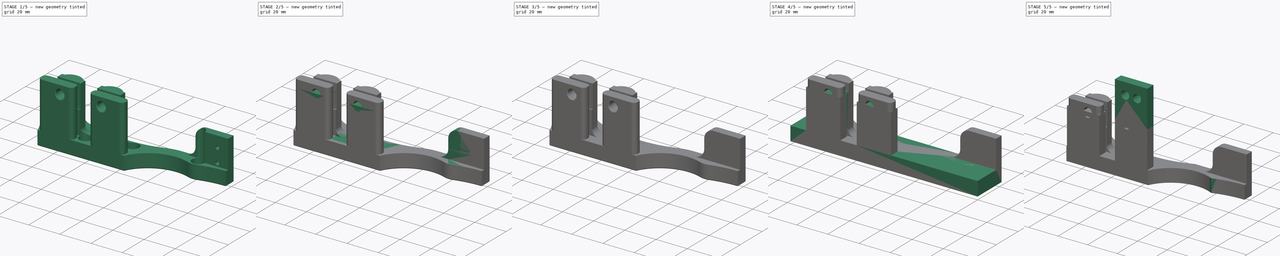
[diagram: build sequence overview — one tinted view per stage of 5, left to right]
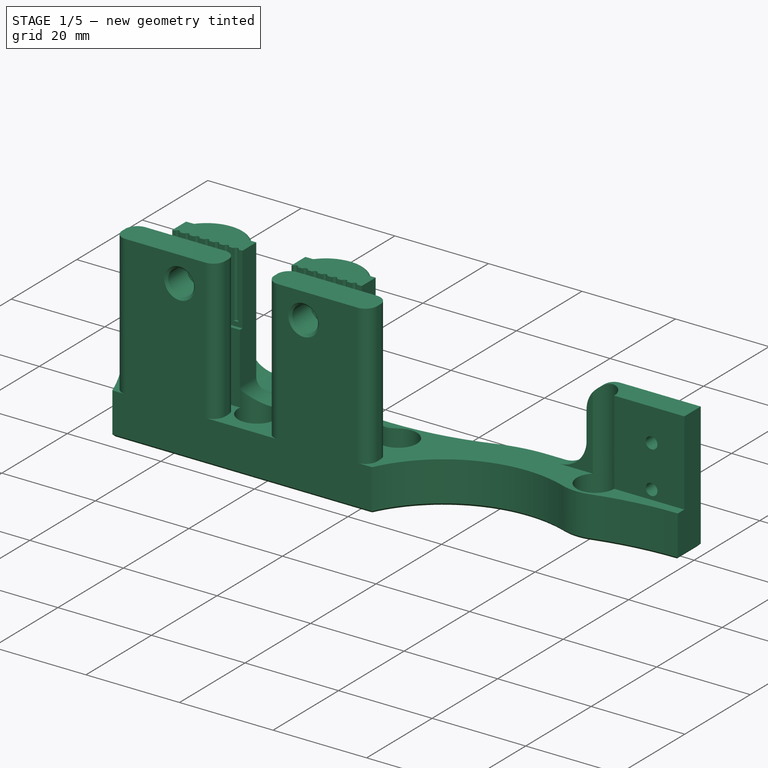
[diagram: stage 1 of 5 — iso view after this stage's code; geometry added in this stage tinted green]
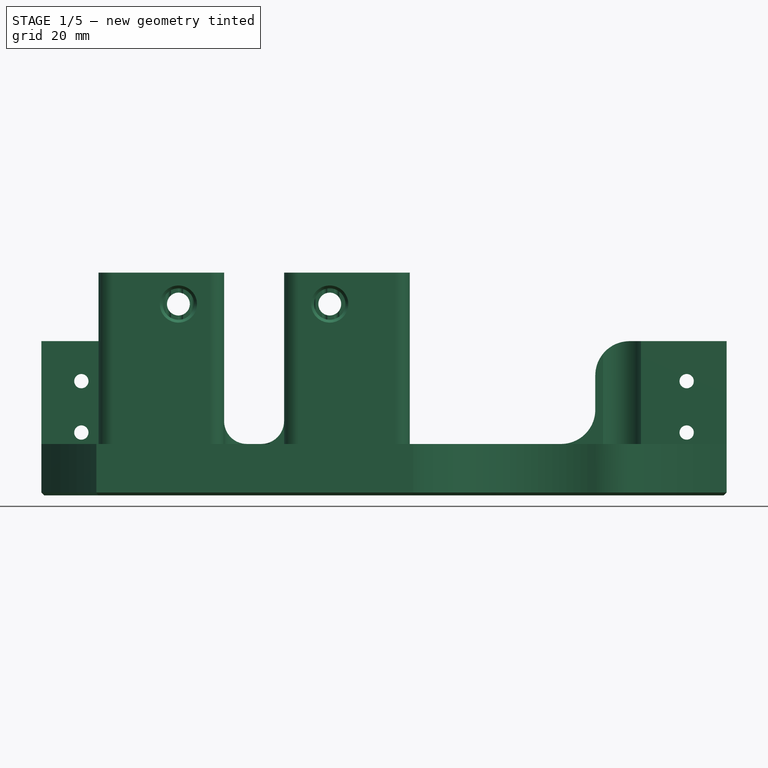
[diagram: stage 1 of 5 — front view after this stage's code; geometry added in this stage tinted green]
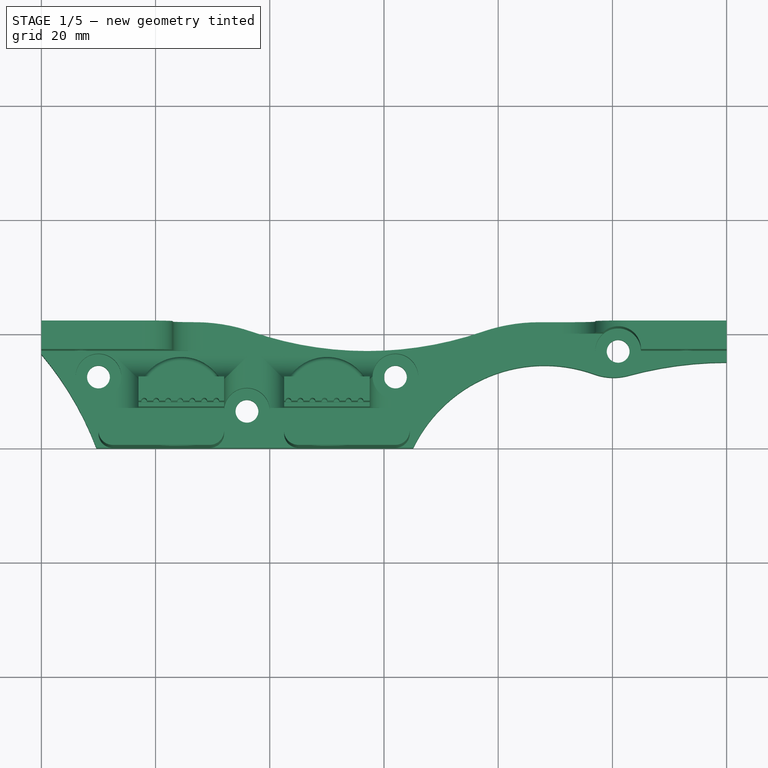
[diagram: stage 1 of 5 — top view after this stage's code; geometry added in this stage tinted green]
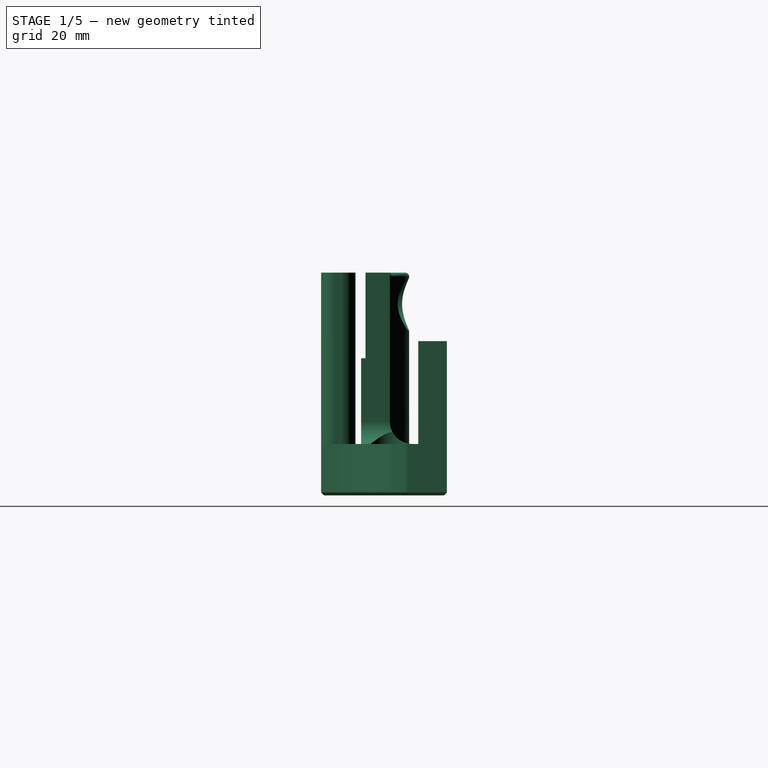
[diagram: stage 1 of 5 — right view after this stage's code; geometry added in this stage tinted green]
FCSTD DOCUMENT  (FreeCAD 0.16R5861 (Git))
Label: y_belt_mount_0.75
License: All rights reserved
LicenseURL: http://en.wikipedia.org/wiki/All_rights_reserved
objects: Sketcher::SketchObject×34, PartDesign::Pocket×21, PartDesign::Pad×12, PartDesign::Fillet×7, PartDesign::Chamfer×6, Part::Feature×3, PartDesign::LinearPattern×1
note: 117 computed .brp shape members not serialized (recipe doc carries the construction recipe); baked Part::Feature solids carry a one-line shape summary decoded from their .brp

FEATURE [Part::Feature] Pocket009009001  label="Pocket009010"
  shape: bbox 120 x 22 x 39.28 mm, 143 faces (baked)
FEATURE [Sketcher::SketchObject] Sketch028
  ExternalGeometry = -> [Pocket009009001]
  Placement = pos=(0,22,0) rot=(0,0.707107,0.707107;3.14159rad)
  Support = -> Pocket009009001 [Face14]
  sketch-geometry (4):
    g0: Circle CenterX=-113 CenterY=16 CenterZ=0 NormalX=0 NormalY=0 NormalZ=1 Radius=3
    g1: Circle CenterX=-113 CenterY=7 CenterZ=0 NormalX=0 NormalY=0 NormalZ=1 Radius=3
    g2: Circle CenterX=-7 CenterY=7 CenterZ=0 NormalX=0 NormalY=0 NormalZ=1 Radius=3
    g3: Circle CenterX=-7 CenterY=16 CenterZ=0 NormalX=0 NormalY=0 NormalZ=1 Radius=3
  constraints (8):
    c: Coincident(g0,g-3)
    c: Coincident(g1,g-4)
    c: Coincident(g2,g-6)
    c: Coincident(g3,g-5)
    c: Equal(g3,g2)
    c: Equal(g2,g1)
    c: Equal(g1,g0)
    c: Radius(g0) = 3
FEATURE [PartDesign::Pad] Pad010
  Length = 5
  Length2 = 100
  Reversed = true
  Sketch = -> Sketch028
  Type = 0
FEATURE [Sketcher::SketchObject] Sketch029
  ExternalGeometry = -> [Pad010]
  Placement = pos=(0,22,0) rot=(0,0.707107,0.707107;3.14159rad)
  Support = -> Pad010 [Face40]
  sketch-geometry (8):
    g0: LineSegment [constr] StartX=-113 StartY=11 StartZ=0 EndX=-7 EndY=11 EndZ=0
    g1: LineSegment [constr] StartX=-7 StartY=11 StartZ=0 EndX=-7 EndY=20 EndZ=0
    g2: LineSegment [constr] StartX=-7 StartY=20 StartZ=0 EndX=-113 EndY=20 EndZ=0
    g3: LineSegment [constr] StartX=-113 StartY=20 StartZ=0 EndX=-113 EndY=11 EndZ=0
    g4: Circle CenterX=-113 CenterY=20 CenterZ=0 NormalX=0 NormalY=0 NormalZ=1 Radius=1.25
    g5: Circle CenterX=-113 CenterY=11 CenterZ=0 NormalX=0 NormalY=0 NormalZ=1 Radius=1.25
    g6: Circle CenterX=-7 CenterY=11 CenterZ=0 NormalX=0 NormalY=0 NormalZ=1 Radius=1.25
    g7: Circle CenterX=-7 CenterY=20 CenterZ=0 NormalX=0 NormalY=0 NormalZ=1 Radius=1.25
  constraints (20):
    c: Coincident(g0,g1)
    c: Coincident(g1,g2)
    c: Coincident(g2,g3)
    c: Coincident(g3,g0)
    c: Horizontal(g0)
    c: Horizontal(g2)
    c: Vertical(g1)
    c: Vertical(g3)
    c: PointOnObject(g-3,g3)
    c: PointOnObject(g-4,g1)
    c: DistanceY(g1) = 9
    c: DistanceY(g2,g-3) = -4
    c: Coincident(g4,g2)
    c: Coincident(g5,g0)
    c: Coincident(g6,g0)
    c: Coincident(g7,g1)
    c: Equal(g5,g4)
    c: Equal(g4,g7)
    c: Equal(g7,g6)
    c: Radius(g7) = 1.25
FEATURE [PartDesign::Pocket] Pocket009009002
  Length = 5
  Sketch = -> Sketch029
  Type = 0
FEATURE [PartDesign::Chamfer] Chamfer004
  Base = -> Pocket009009002 [Edge177,Edge181,Edge286,Edge290]
  Size = 0.4
FEATURE [Part::Feature] Chamfer004001  label="Chamfer005"
  shape: bbox 120 x 22 x 39.28 mm, 155 faces (baked)
FEATURE [PartDesign::Fillet] Fillet005
  Base = -> Chamfer004001 [Edge266,Edge274,Edge265,Edge257]
  Radius = 2
FEATURE [PartDesign::Chamfer] Chamfer004002
  Base = -> Fillet005 [Edge66,Edge204]
  Size = 0.7
FEATURE [Sketcher::SketchObject] Sketch030
  ExternalGeometry = -> [Chamfer004002]
  Placement = pos=(0,0,39) rot=(0,0,1;0rad)
  Support = -> Chamfer004002 [Face141]
  sketch-geometry (4):
    g0: ArcOfCircle CenterX=24.5 CenterY=7.5 CenterZ=0 NormalX=0 NormalY=0 NormalZ=1 Radius=7.90569 StartAngle=0.321751 EndAngle=2.81984
    g1: ArcOfCircle CenterX=50 CenterY=7.5 CenterZ=0 NormalX=0 NormalY=0 NormalZ=1 Radius=7.90569 StartAngle=0.321751 EndAngle=2.81984
    g2: LineSegment StartX=17 StartY=10 StartZ=0 EndX=32 EndY=10 EndZ=0
    g3: LineSegment StartX=42.5 StartY=10 StartZ=0 EndX=57.5 EndY=10 EndZ=0
  constraints (10):
    c: Coincident(g0,g-4)
    c: Coincident(g0,g-3)
    c: Coincident(g1,g-5)
    c: Coincident(g1,g-6)
    c: DistanceY(g1,g-5) = 2.5
    c: DistanceY(g0,g-3) = 2.5
    c: Coincident(g2,g0)
    c: Coincident(g2,g0)
    c: Coincident(g3,g1)
    c: Coincident(g3,g1)
FEATURE [PartDesign::Pad] Pad011
  Length = 35
  Length2 = 100
  Reversed = true
  Sketch = -> Sketch030
  Type = 0
FEATURE [Sketcher::SketchObject] Sketch031
  ExternalGeometry = -> [Pad011]
  Placement = pos=(0,0,0) rot=(1,0,0;1.5708rad)
  Support = -> Pad011 [Face17]
  sketch-geometry (2):
    g0: Circle CenterX=24 CenterY=33.5 CenterZ=0 NormalX=0 NormalY=0 NormalZ=1 Radius=2
    g1: Circle CenterX=50.5 CenterY=33.5 CenterZ=0 NormalX=0 NormalY=0 NormalZ=1 Radius=2
  constraints (4):
    c: Coincident(g0,g-3)
    c: PointOnObject(g-3,g0)
    c: Coincident(g1,g-4)
    c: PointOnObject(g-4,g1)
FEATURE [PartDesign::Pocket] Pocket009009003
  Length = 5
  Sketch = -> Sketch031
  Type = 1
FEATURE [Sketcher::SketchObject] Sketch032
  ExternalGeometry = -> [Pocket009009003]
  Placement = pos=(0,22,0) rot=(0,0.707107,0.707107;3.14159rad)
  Support = -> Pocket009009003 [Face37]
  sketch-geometry (2):
    g0: Circle CenterX=-50.5 CenterY=33.5 CenterZ=0 NormalX=0 NormalY=0 NormalZ=1 Radius=4.75
    g1: Circle CenterX=-24 CenterY=33.5 CenterZ=0 NormalX=0 NormalY=0 NormalZ=1 Radius=4.75
  constraints (4):
    c: Coincident(g0,g-4)
    c: Coincident(g1,g-5)
    c: Equal(g0,g1)
    c: Radius(g0) = 4.75
FEATURE [PartDesign::Pocket] Pocket009009004
  Length = 9
  Sketch = -> Sketch032
  Type = 0
FEATURE [PartDesign::Fillet] Fillet006
  Base = -> Pocket009009004 [Edge283,Edge412]
  Radius = 0.7
FEATURE [Sketcher::SketchObject] Sketch033
  ExternalGeometry = -> [Fillet006]
  Placement = pos=(0,22,0) rot=(0,0.707107,0.707107;3.14159rad)
  Support = -> Fillet006 [Face69]
  sketch-geometry (4):
    g0: Circle CenterX=-113 CenterY=20 CenterZ=0 NormalX=0 NormalY=0 NormalZ=1 Radius=1.5
    g1: Circle CenterX=-113 CenterY=11 CenterZ=0 NormalX=0 NormalY=0 NormalZ=1 Radius=1.5
    g2: Circle CenterX=-7 CenterY=20 CenterZ=0 NormalX=0 NormalY=0 NormalZ=1 Radius=1.5
    g3: Circle CenterX=-7 CenterY=11 CenterZ=0 NormalX=0 NormalY=0 NormalZ=1 Radius=1.5
  constraints (8):
    c: Coincident(g0,g-3)
    c: Coincident(g1,g-4)
    c: Coincident(g2,g-7)
    c: Coincident(g3,g-6)
    c: Equal(g0,g1)
    c: Equal(g1,g2)
    c: Equal(g2,g3)
    c: Radius(g2) = 1.5
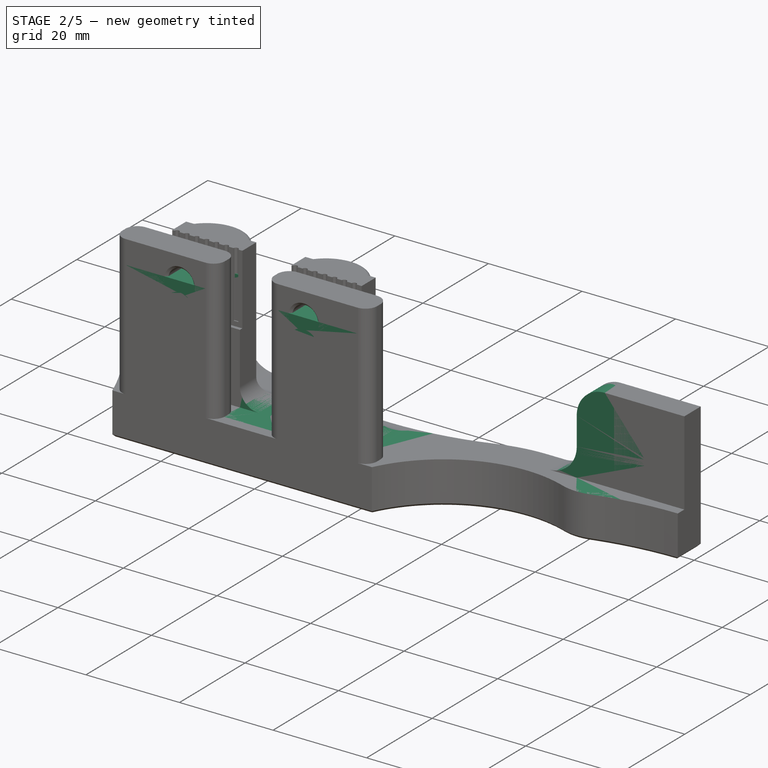
[diagram: stage 2 of 5 — iso view after this stage's code; geometry added in this stage tinted green]
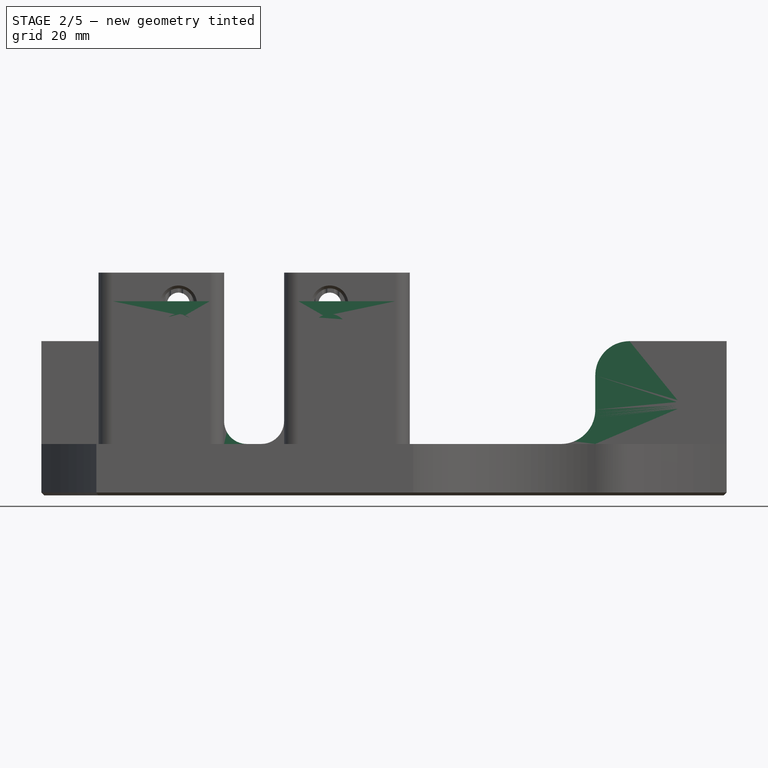
[diagram: stage 2 of 5 — front view after this stage's code; geometry added in this stage tinted green]
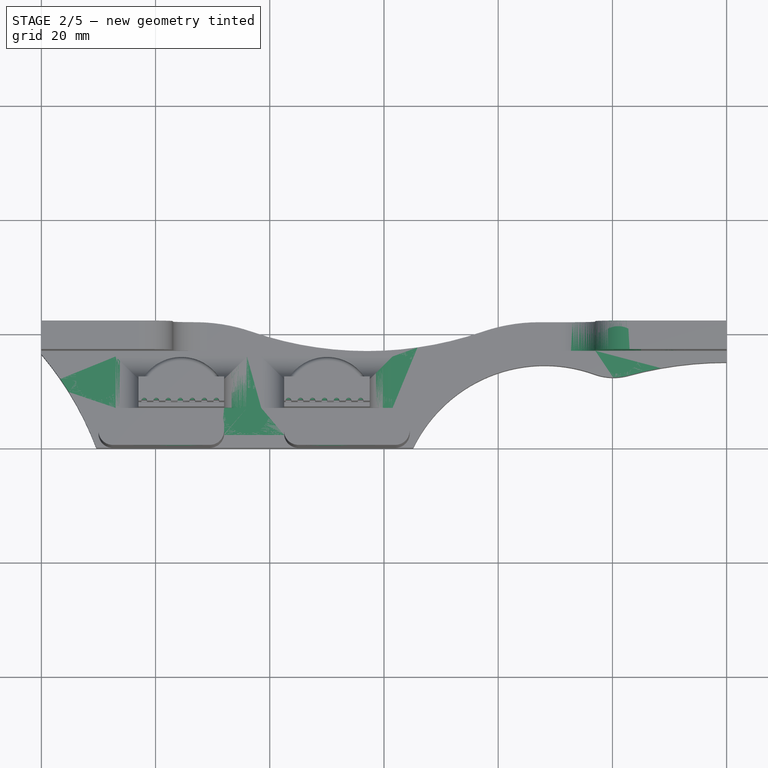
[diagram: stage 2 of 5 — top view after this stage's code; geometry added in this stage tinted green]
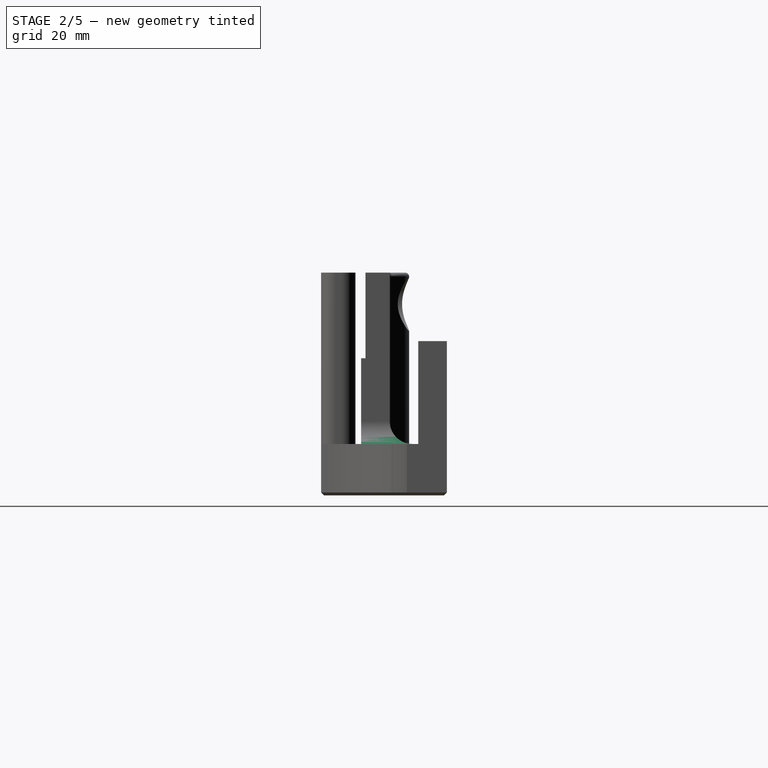
[diagram: stage 2 of 5 — right view after this stage's code; geometry added in this stage tinted green]
FEATURE [Part::Feature] Pocket009001  label="Pocket010"
  shape: bbox 120 x 22 x 53 mm, 69 faces (baked)
FEATURE [PartDesign::Fillet] Fillet002
  Base = -> Pocket009001 [Edge54,Edge53]
  Radius = 30
FEATURE [PartDesign::Fillet] Fillet003
  Base = -> Fillet002 [Edge35]
  Radius = 10
FEATURE [PartDesign::Fillet] Fillet004
  Base = -> Fillet003 [Edge40,Edge120,Edge38,Edge46,Edge124,Edge42,Edge123,Edge116]
  Radius = 2.5
FEATURE [Sketcher::SketchObject] Sketch013
  Placement = pos=(0,0,53) rot=(0,0,1;0rad)
  Support = -> Fillet004 [Face11]
  sketch-geometry (4):
    g0: LineSegment StartX=0 StartY=0 StartZ=0 EndX=130 EndY=0 EndZ=0
    g1: LineSegment StartX=130 StartY=0 StartZ=0 EndX=130 EndY=25 EndZ=0
    g2: LineSegment StartX=130 StartY=25 StartZ=0 EndX=0 EndY=25 EndZ=0
    g3: LineSegment StartX=0 StartY=25 StartZ=0 EndX=0 EndY=0 EndZ=0
  constraints (11):
    c: Coincident(g0,g1)
    c: Coincident(g1,g2)
    c: Coincident(g2,g3)
    c: Coincident(g3,g0)
    c: Horizontal(g0)
    c: Horizontal(g2)
    c: Vertical(g1)
    c: Vertical(g3)
    c: Coincident(g0,g-1)
    c: DistanceX(g2) = -130
    c: DistanceY(g3) = -25
FEATURE [PartDesign::Pocket] Pocket009002
  Length = 19
  Sketch = -> Sketch013
  Type = 0
FEATURE [PartDesign::Chamfer] Chamfer
  Base = -> Pocket009002 [Edge65,Edge66,Edge67,Edge68,Edge69,Edge5,Edge70,Edge63,Edge71,Edge72,Edge73,Edge74,Edge75,Edge76,Edge77,Edge78]
  Size = 0.5
FEATURE [PartDesign::Chamfer] Chamfer001
  Base = -> Chamfer [Edge183,Edge182,Edge139,Edge138,Edge17,Edge18]
  Size = 0.5
FEATURE [Sketcher::SketchObject] Sketch014
  ExternalGeometry = -> [Chamfer001]
  Placement = pos=(0,0,0) rot=(1,0,0;3.14159rad)
  Support = -> Chamfer001 [Face17]
  sketch-geometry (3):
    g0: Circle CenterX=37 CenterY=-6 CenterZ=0 NormalX=0 NormalY=0 NormalZ=1 Radius=3.25
    g1: Circle CenterX=12 CenterY=-12.5 CenterZ=0 NormalX=0 NormalY=0 NormalZ=1 Radius=3.25
    g2: Circle CenterX=100 CenterY=-17 CenterZ=0 NormalX=0 NormalY=0 NormalZ=1 Radius=3.25
  constraints (6):
    c: Coincident(g0,g-5)
    c: Coincident(g1,g-3)
    c: Coincident(g2,g-6)
    c: Equal(g1,g0)
    c: Equal(g0,g2)
    c: Equal(g2,g-3)
FEATURE [PartDesign::Pad] Pad003
  Length = 8
  Length2 = 100
  Reversed = true
  Sketch = -> Sketch014
  Type = 0
FEATURE [Sketcher::SketchObject] Sketch015
  ExternalGeometry = -> [Pad003]
  Placement = pos=(0,0,0) rot=(1,0,0;3.14159rad)
  Support = -> Pad003 [Face17]
  sketch-geometry (4):
    g0: Circle CenterX=36 CenterY=-6.5 CenterZ=0 NormalX=0 NormalY=0 NormalZ=1 Radius=2.75
    g1: Circle CenterX=10 CenterY=-12.5 CenterZ=0 NormalX=0 NormalY=0 NormalZ=1 Radius=2.75
    g2: Circle CenterX=101 CenterY=-17 CenterZ=0 NormalX=0 NormalY=0 NormalZ=1 Radius=2.75
    g3: LineSegment [constr] StartX=62 StartY=-12.5 StartZ=0 EndX=10 EndY=-12.5 EndZ=0
  constraints (11):
    c: DistanceX(g0,g-3) = 26
    c: DistanceY(g0,g-3) = -6
    c: Coincident(g3,g-3)
    c: Coincident(g3,g1)
    c: Horizontal(g3)
    c: DistanceX(g3) = -52
    c: DistanceY(g2,g3) = 4.5
    c: DistanceX(g3,g2) = 39
    c: Equal(g1,g0)
    c: Equal(g0,g-4)
    c: Equal(g-4,g2)
FEATURE [PartDesign::Pocket] Pocket009003
  Length = 8
  Sketch = -> Sketch015
  Type = 0
FEATURE [PartDesign::Chamfer] Chamfer002
  Base = -> Pocket009003 [Edge209,Edge202,Edge206]
  Size = 0.5
FEATURE [Sketcher::SketchObject] Sketch016
  ExternalGeometry = -> [Chamfer002]
  Placement = pos=(0,0,0) rot=(1,0,0;1.5708rad)
  Support = -> Chamfer002 [Face26]
  sketch-geometry (2):
    g0: Circle CenterX=24 CenterY=28.5 CenterZ=0 NormalX=0 NormalY=0 NormalZ=1 Radius=3.25
    g1: Circle CenterX=50.5 CenterY=28.5 CenterZ=0 NormalX=0 NormalY=0 NormalZ=1 Radius=3.25
  constraints (4):
    c: Coincident(g0,g-3)
    c: Coincident(g1,g-4)
    c: Equal(g1,g-4)
    c: Equal(g-4,g0)
FEATURE [PartDesign::Pad] Pad004
  Length = 6
  Length2 = 100
  Reversed = true
  Sketch = -> Sketch016
  Type = 0
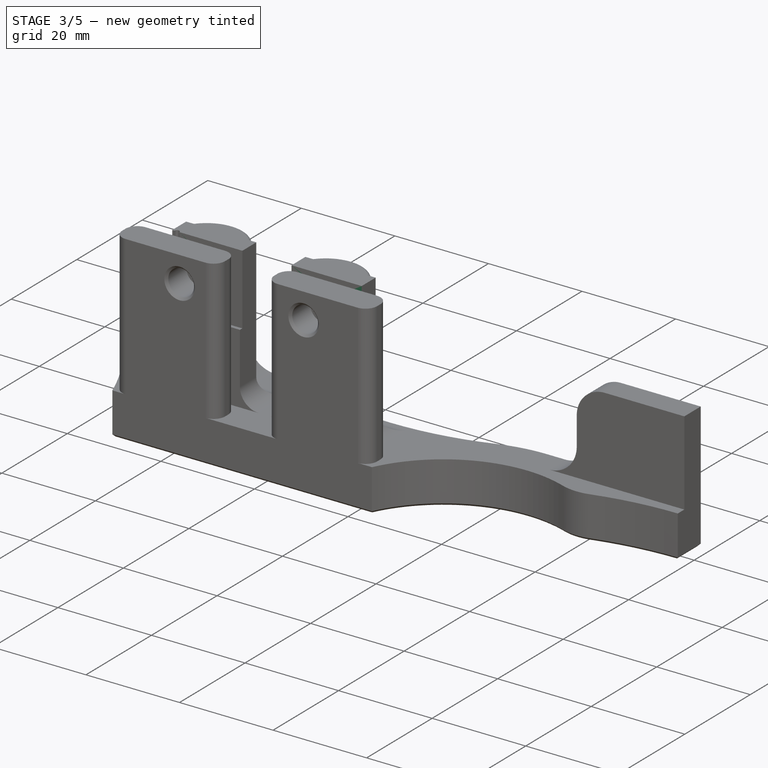
[diagram: stage 3 of 5 — iso view after this stage's code; geometry added in this stage tinted green]
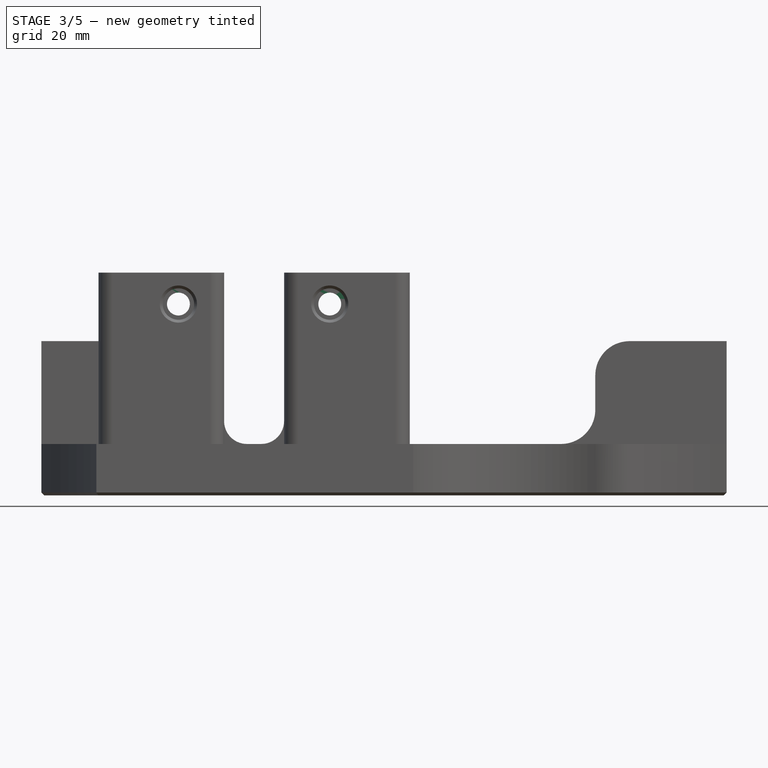
[diagram: stage 3 of 5 — front view after this stage's code; geometry added in this stage tinted green]
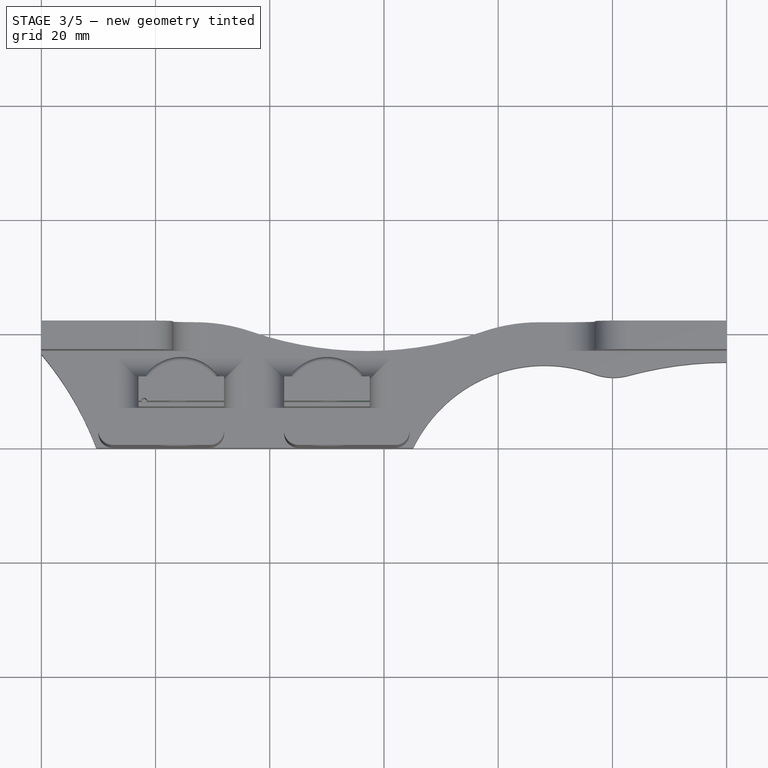
[diagram: stage 3 of 5 — top view after this stage's code; geometry added in this stage tinted green]
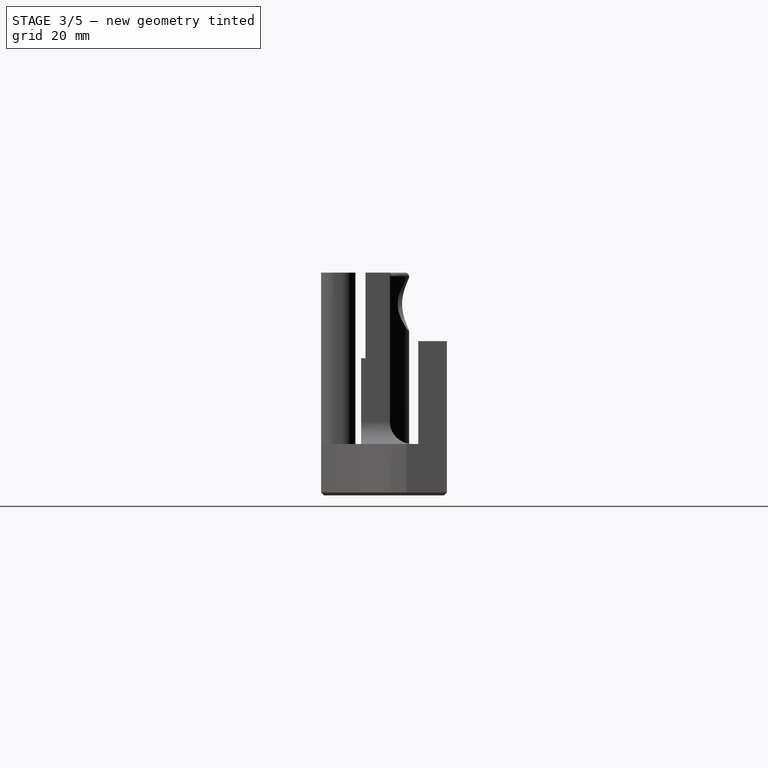
[diagram: stage 3 of 5 — right view after this stage's code; geometry added in this stage tinted green]
FEATURE [Sketcher::SketchObject] Sketch017
  ExternalGeometry = -> [Pad004]
  Placement = pos=(0,12,0) rot=(0,0.707107,0.707107;3.14159rad)
  Support = -> Pad004 [Face101]
  sketch-geometry (2):
    g0: Circle CenterX=-50.5 CenterY=28.5 CenterZ=0 NormalX=0 NormalY=0 NormalZ=1 Radius=2
    g1: Circle CenterX=-24 CenterY=28.5 CenterZ=0 NormalX=0 NormalY=0 NormalZ=1 Radius=2
  constraints (4):
    c: Coincident(g0,g-3)
    c: Coincident(g1,g-4)
    c: Equal(g-3,g0)
    c: Equal(g0,g1)
FEATURE [PartDesign::Pad] Pad005
  Length = 4
  Length2 = 100
  Reversed = true
  Sketch = -> Sketch017
  Type = 0
FEATURE [Sketcher::SketchObject] Sketch018
  ExternalGeometry = -> [Pad005]
  Placement = pos=(0,0,34) rot=(0,0,1;0rad)
  Support = -> Pad005 [Face46]
  sketch-geometry (16):
    g0: ArcOfCircle CenterX=12.5 CenterY=3.5 CenterZ=0 NormalX=0 NormalY=0 NormalZ=1 Radius=2.5 StartAngle=1.5708 EndAngle=3.14159
    g1: ArcOfCircle CenterX=12.5 CenterY=2.5 CenterZ=0 NormalX=0 NormalY=0 NormalZ=1 Radius=2.5 StartAngle=3.14159 EndAngle=4.71239
    g2: ArcOfCircle CenterX=29.5 CenterY=2.5 CenterZ=0 NormalX=0 NormalY=0 NormalZ=1 Radius=2.5 StartAngle=4.71239 EndAngle=6.28319
    g3: ArcOfCircle CenterX=29.5 CenterY=3.5 CenterZ=0 NormalX=0 NormalY=0 NormalZ=1 Radius=2.5 StartAngle=0 EndAngle=1.5708
    g4: LineSegment StartX=12.5 StartY=6 StartZ=0 EndX=29.5 EndY=6 EndZ=0
    g5: LineSegment StartX=32 StartY=3.5 StartZ=0 EndX=32 EndY=2.5 EndZ=0
    g6: LineSegment StartX=29.5 StartY=0 StartZ=0 EndX=12.5 EndY=0 EndZ=0
    g7: LineSegment StartX=10 StartY=2.5 StartZ=0 EndX=10 EndY=3.5 EndZ=0
    g8: ArcOfCircle CenterX=45 CenterY=3.5 CenterZ=0 NormalX=0 NormalY=0 NormalZ=1 Radius=2.5 StartAngle=1.5708 EndAngle=3.14159
    g9: ArcOfCircle CenterX=45 CenterY=2.5 CenterZ=0 NormalX=0 NormalY=0 NormalZ=1 Radius=2.5 StartAngle=3.14159 EndAngle=4.71239
    g10: ArcOfCircle CenterX=62 CenterY=3.5 CenterZ=0 NormalX=0 NormalY=0 NormalZ=1 Radius=2.5 StartAngle=0 EndAngle=1.5708
    g11: ArcOfCircle CenterX=62 CenterY=2.5 CenterZ=0 NormalX=0 NormalY=0 NormalZ=1 Radius=2.5 StartAngle=4.71239 EndAngle=6.28319
    g12: LineSegment StartX=45 StartY=0 StartZ=0 EndX=62 EndY=0 EndZ=0
    g13: LineSegment StartX=64.5 StartY=2.5 StartZ=0 EndX=64.5 EndY=3.5 EndZ=0
    g14: LineSegment StartX=62 StartY=6 StartZ=0 EndX=45 EndY=6 EndZ=0
    g15: LineSegment StartX=42.5 StartY=3.5 StartZ=0 EndX=42.5 EndY=2.5 EndZ=0
  constraints (46):
    c: Coincident(g0,g-3)
    c: Coincident(g0,g-3)
    c: Coincident(g0,g-3)
    c: Coincident(g1,g-9)
    c: Coincident(g1,g-9)
    c: Coincident(g1,g-9)
    c: Coincident(g2,g-4)
    c: Coincident(g2,g-4)
    c: Coincident(g2,g-4)
    c: Coincident(g3,g-5)
    c: Coincident(g3,g-5)
    c: Coincident(g3,g-5)
    c: Coincident(g4,g0)
    c: Coincident(g4,g3)
    c: Horizontal(g4)
    c: Coincident(g5,g3)
    c: Coincident(g5,g2)
    c: Coincident(g6,g2)
    c: Coincident(g6,g1)
    c: Horizontal(g6)
    c: Coincident(g7,g1)
    c: Coincident(g7,g0)
    c: Vertical(g7)
    c: Coincident(g8,g-6)
    c: Coincident(g8,g-6)
    c: Coincident(g8,g-6)
    c: Coincident(g9,g-7)
    c: Coincident(g9,g-7)
    c: Coincident(g9,g-7)
    c: Coincident(g10,g-8)
    c: Coincident(g10,g-8)
    c: Coincident(g10,g-8)
    c: Coincident(g11,g-10)
    c: Coincident(g11,g-10)
    c: Coincident(g11,g-10)
    c: Coincident(g12,g9)
    c: Coincident(g12,g11)
    c: Horizontal(g12)
    c: Coincident(g13,g11)
    c: Coincident(g13,g10)
    c: Coincident(g14,g10)
    c: Coincident(g14,g8)
    c: Horizontal(g14)
    c: Coincident(g15,g8)
    c: Coincident(g15,g9)
    c: Vertical(g15)
FEATURE [PartDesign::Pad] Pad006
  Length = 5
  Length2 = 100
  Sketch = -> Sketch018
  Type = 0
FEATURE [Sketcher::SketchObject] Sketch019
  ExternalGeometry = -> [Pad006]
  Placement = pos=(0,0,19) rot=(0,0,1;0rad)
  Support = -> Pad006 [Face115]
  sketch-geometry (8):
    g0: LineSegment StartX=17 StartY=7 StartZ=0 EndX=32 EndY=7 EndZ=0
    g1: LineSegment StartX=32 StartY=7 StartZ=0 EndX=32 EndY=8 EndZ=0
    g2: LineSegment StartX=32 StartY=8 StartZ=0 EndX=17 EndY=8 EndZ=0
    g3: LineSegment StartX=17 StartY=8 StartZ=0 EndX=17 EndY=7 EndZ=0
    g4: LineSegment StartX=42.5 StartY=7 StartZ=0 EndX=57.5 EndY=7 EndZ=0
    g5: LineSegment StartX=57.5 StartY=7 StartZ=0 EndX=57.5 EndY=8 EndZ=0
    g6: LineSegment StartX=57.5 StartY=8 StartZ=0 EndX=42.5 EndY=8 EndZ=0
    g7: LineSegment StartX=42.5 StartY=8 StartZ=0 EndX=42.5 EndY=7 EndZ=0
  constraints (20):
    c: Coincident(g0,g1)
    c: Coincident(g1,g2)
    c: Coincident(g2,g3)
    c: Coincident(g3,g0)
    c: Horizontal(g0)
    c: Horizontal(g2)
    c: Vertical(g1)
    c: Vertical(g3)
    c: Coincident(g0,g-4)
    c: Coincident(g1,g-3)
    c: Coincident(g4,g5)
    c: Coincident(g5,g6)
    c: Coincident(g6,g7)
    c: Coincident(g7,g4)
    c: Horizontal(g4)
    c: Horizontal(g6)
    c: Vertical(g5)
    c: Vertical(g7)
    c: Coincident(g4,g-5)
    c: Coincident(g5,g-6)
FEATURE [PartDesign::Pad] Pad007
  Length = 15
  Length2 = 100
  Sketch = -> Sketch019
  Type = 0
FEATURE [Sketcher::SketchObject] Sketch020
  ExternalGeometry = -> [Pad007]
  Placement = pos=(0,0,34) rot=(0,0,1;0rad)
  Support = -> Pad007 [Face127]
  sketch-geometry (8):
    g0: LineSegment StartX=17 StartY=7 StartZ=0 EndX=32 EndY=7 EndZ=0
    g1: LineSegment StartX=32 StartY=7 StartZ=0 EndX=32 EndY=12 EndZ=0
    g2: LineSegment StartX=32 StartY=12 StartZ=0 EndX=17 EndY=12 EndZ=0
    g3: LineSegment StartX=17 StartY=12 StartZ=0 EndX=17 EndY=7 EndZ=0
    g4: LineSegment StartX=42.5 StartY=7 StartZ=0 EndX=57.5 EndY=7 EndZ=0
    g5: LineSegment StartX=57.5 StartY=7 StartZ=0 EndX=57.5 EndY=12 EndZ=0
    g6: LineSegment StartX=57.5 StartY=12 StartZ=0 EndX=42.5 EndY=12 EndZ=0
    g7: LineSegment StartX=42.5 StartY=12 StartZ=0 EndX=42.5 EndY=7 EndZ=0
  constraints (20):
    c: Coincident(g0,g1)
    c: Coincident(g1,g2)
    c: Coincident(g2,g3)
    c: Coincident(g3,g0)
    c: Horizontal(g0)
    c: Horizontal(g2)
    c: Vertical(g1)
    c: Vertical(g3)
    c: Coincident(g0,g-3)
    c: Coincident(g1,g-6)
    c: Coincident(g4,g5)
    c: Coincident(g5,g6)
    c: Coincident(g6,g7)
    c: Coincident(g7,g4)
    c: Horizontal(g4)
    c: Horizontal(g6)
    c: Vertical(g5)
    c: Vertical(g7)
    c: Coincident(g4,g-5)
    c: Coincident(g5,g-4)
FEATURE [PartDesign::Pad] Pad008
  Length = 5
  Length2 = 100
  Sketch = -> Sketch020
  Type = 0
FEATURE [Sketcher::SketchObject] Sketch021
  ExternalGeometry = -> [Pad008]
  Placement = pos=(0,12,0) rot=(0,0.707107,0.707107;3.14159rad)
  Support = -> Pad008 [Face113]
  sketch-geometry (6):
    g0: LineSegment [constr] StartX=-50.5 StartY=28.5 StartZ=0 EndX=-24 EndY=28.5 EndZ=0
    g1: LineSegment [constr] StartX=-24 StartY=28.5 StartZ=0 EndX=-24 EndY=33.5 EndZ=0
    g2: LineSegment [constr] StartX=-24 StartY=33.5 StartZ=0 EndX=-50.5 EndY=33.5 EndZ=0
    g3: LineSegment [constr] StartX=-50.5 StartY=33.5 StartZ=0 EndX=-50.5 EndY=28.5 EndZ=0
    g4: Circle CenterX=-50.5 CenterY=33.5 CenterZ=0 NormalX=0 NormalY=0 NormalZ=1 Radius=2
    g5: Circle CenterX=-24 CenterY=33.5 CenterZ=0 NormalX=0 NormalY=0 NormalZ=1 Radius=2
  constraints (15):
    c: Coincident(g0,g1)
    c: Coincident(g1,g2)
    c: Coincident(g2,g3)
    c: Coincident(g3,g0)
    c: Horizontal(g0)
    c: Horizontal(g2)
    c: Vertical(g1)
    c: Vertical(g3)
    c: Coincident(g0,g-3)
    c: Coincident(g-4,g0)
    c: DistanceY(g3) = -5
    c: Coincident(g4,g2)
    c: Coincident(g5,g1)
    c: Equal(g-4,g5)
    c: Equal(g5,g4)
FEATURE [PartDesign::Pocket] Pocket009004
  Length = 5
  Sketch = -> Sketch021
  Type = 1
FEATURE [Sketcher::SketchObject] Sketch022
  ExternalGeometry = -> [Pocket009004]
  Placement = pos=(0,0,0) rot=(1,0,0;1.5708rad)
  Support = -> Pocket009004 [Face46]
  sketch-geometry (2):
    g0: Circle CenterX=24 CenterY=33.5 CenterZ=0 NormalX=0 NormalY=0 NormalZ=1 Radius=2.75
    g1: Circle CenterX=50.5 CenterY=33.5 CenterZ=0 NormalX=0 NormalY=0 NormalZ=1 Radius=2.75
  constraints (4):
    c: Coincident(g0,g-3)
    c: Coincident(g1,g-4)
    c: Equal(g0,g1)
    c: Radius(g1) = 2.75
FEATURE [PartDesign::Pocket] Pocket009005
  Length = 6
  Sketch = -> Sketch022
  Type = 0
FEATURE [PartDesign::Chamfer] Chamfer003
  Base = -> Pocket009005 [Edge197,Edge180]
  Size = 0.5
FEATURE [Sketcher::SketchObject] Sketch023
  ExternalGeometry = -> [Chamfer003]
  Placement = pos=(17,0,0) rot=(0.57735,-0.57735,-0.57735;2.0944rad)
  Support = -> Chamfer003 [Face131]
  sketch-geometry (4):
    g0: LineSegment StartX=-7 StartY=39 StartZ=0 EndX=-7.75 EndY=39 EndZ=0
    g1: LineSegment StartX=-7.75 StartY=39 StartZ=0 EndX=-7.75 EndY=24 EndZ=0
    g2: LineSegment StartX=-7.75 StartY=24 StartZ=0 EndX=-7 EndY=24 EndZ=0
    g3: LineSegment StartX=-7 StartY=24 StartZ=0 EndX=-7 EndY=39 EndZ=0
  constraints (11):
    c: Coincident(g0,g1)
    c: Coincident(g1,g2)
    c: Coincident(g2,g3)
    c: Coincident(g3,g0)
    c: Horizontal(g0)
    c: Horizontal(g2)
    c: Vertical(g1)
    c: Vertical(g3)
    c: Coincident(g0,g-4)
    c: DistanceY(g-3,g2) = 5
    c: DistanceX(g0,g0) = 0.75
FEATURE [PartDesign::Pocket] Pocket009006
  Length = 5
  Sketch = -> Sketch023
  Type = 1
FEATURE [Sketcher::SketchObject] Sketch024
  ExternalGeometry = -> [Pocket009006]
  Placement = pos=(0,0,39) rot=(0,0,1;0rad)
  Support = -> Pocket009006 [Face147]
  sketch-geometry (1):
    g0: Circle CenterX=18 CenterY=7.75 CenterZ=0 NormalX=0 NormalY=0 NormalZ=1 Radius=0.5
  constraints (3):
    c: PointOnObject(g0,g-3)
    c: Radius(g0) = 0.5
    c: DistanceX(g0,g-3) = -1
FEATURE [PartDesign::Pocket] Pocket009007
  Length = 14
  Sketch = -> Sketch024
  Type = 0
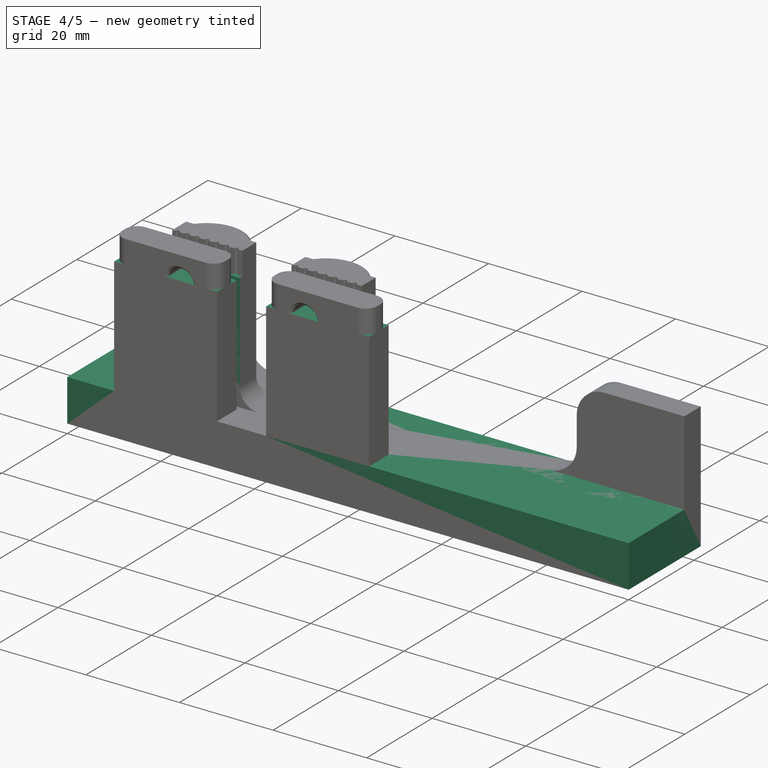
[diagram: stage 4 of 5 — iso view after this stage's code; geometry added in this stage tinted green]
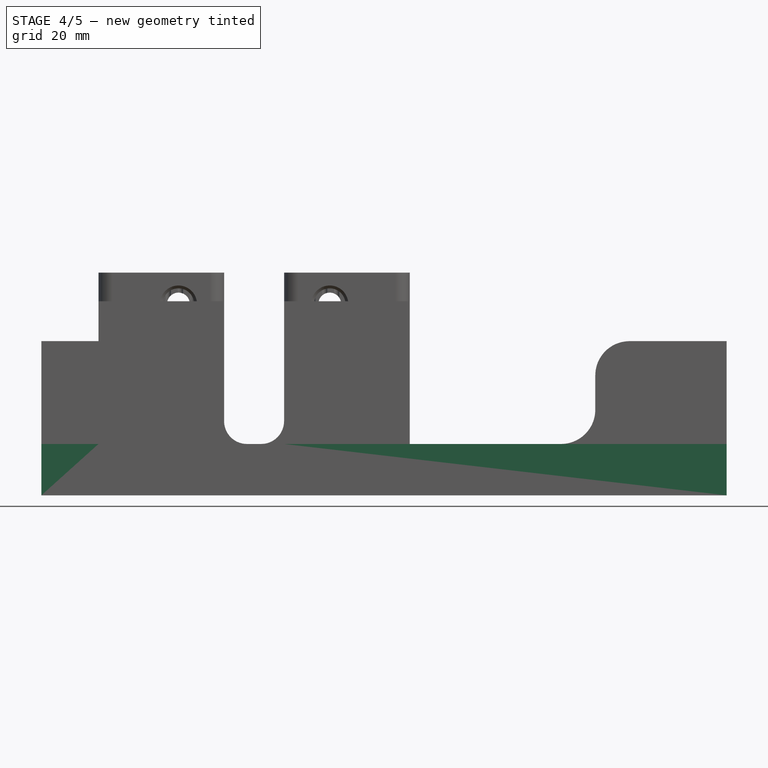
[diagram: stage 4 of 5 — front view after this stage's code; geometry added in this stage tinted green]
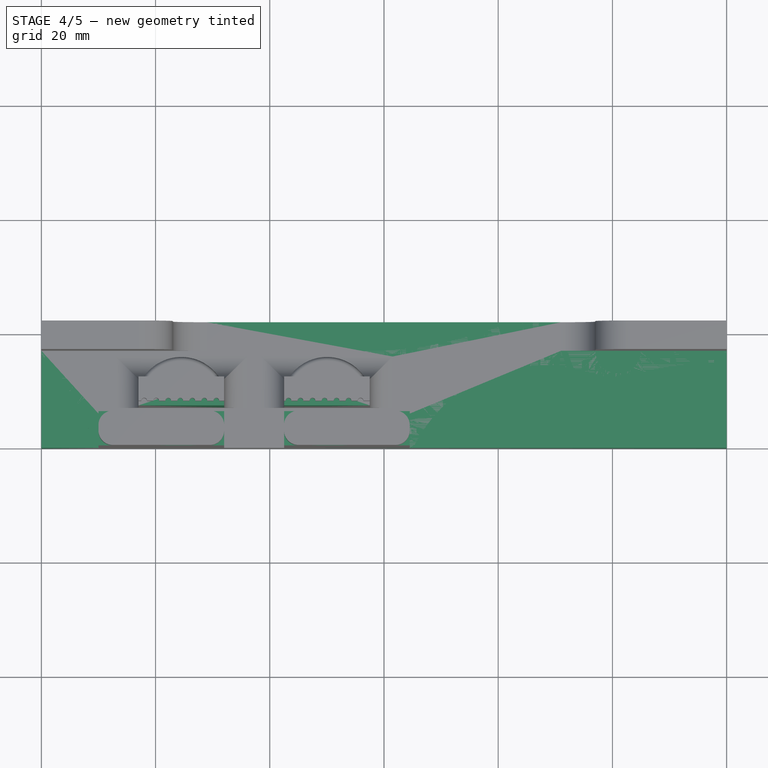
[diagram: stage 4 of 5 — top view after this stage's code; geometry added in this stage tinted green]
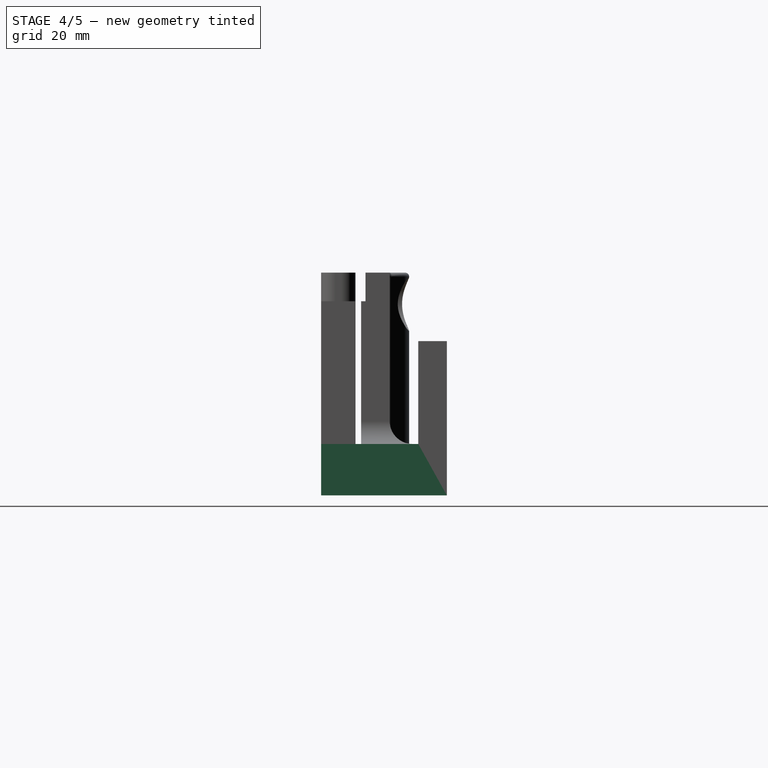
[diagram: stage 4 of 5 — right view after this stage's code; geometry added in this stage tinted green]
FEATURE [Sketcher::SketchObject] Sketch
  sketch-geometry (4):
    g0: LineSegment StartX=0 StartY=0 StartZ=0 EndX=120 EndY=0 EndZ=0
    g1: LineSegment StartX=120 StartY=0 StartZ=0 EndX=120 EndY=22 EndZ=0
    g2: LineSegment StartX=120 StartY=22 StartZ=0 EndX=0 EndY=22 EndZ=0
    g3: LineSegment StartX=0 StartY=22 StartZ=0 EndX=0 EndY=0 EndZ=0
  constraints (11):
    c: Coincident(g0,g1)
    c: Coincident(g1,g2)
    c: Coincident(g2,g3)
    c: Coincident(g3,g0)
    c: Horizontal(g0)
    c: Horizontal(g2)
    c: Vertical(g1)
    c: Vertical(g3)
    c: Coincident(g0,g-1)
    c: DistanceX(g2) = -120
    c: DistanceY(g3) = -22
FEATURE [PartDesign::Pad] Pad
  Length = 9
  Length2 = 100
  Sketch = -> Sketch
  Type = 0
FEATURE [Sketcher::SketchObject] Sketch001
  ExternalGeometry = -> [Pad]
  Placement = pos=(0,0,0) rot=(1,0,0;3.14159rad)
  Support = -> Pad [Face5]
  sketch-geometry (4):
    g0: Circle CenterX=12 CenterY=-12.5 CenterZ=0 NormalX=0 NormalY=0 NormalZ=1 Radius=2.75
    g1: Circle CenterX=37 CenterY=-6 CenterZ=0 NormalX=0 NormalY=0 NormalZ=1 Radius=2.75
    g2: Circle CenterX=62 CenterY=-12.5 CenterZ=0 NormalX=0 NormalY=0 NormalZ=1 Radius=2.75
    g3: Circle CenterX=100 CenterY=-17 CenterZ=0 NormalX=0 NormalY=0 NormalZ=1 Radius=2.75
  constraints (12):
    c: DistanceX(g0) = 12
    c: DistanceY(g0) = -12.5
    c: DistanceX(g1) = 37
    c: DistanceY(g1) = -6
    c: DistanceX(g2) = 62
    c: DistanceY(g2) = -12.5
    c: DistanceX(g3,g-3) = 20
    c: DistanceY(g3,g-3) = -5
    c: Equal(g0,g1)
    c: Equal(g1,g2)
    c: Equal(g2,g3)
    c: Radius(g0) = 2.75
FEATURE [PartDesign::Pocket] Pocket
  Length = 7
  Sketch = -> Sketch001
  Type = 0
FEATURE [Sketcher::SketchObject] Sketch002
  ExternalGeometry = -> [Pocket]
  Placement = pos=(0,0,9) rot=(0,0,1;0rad)
  Support = -> Pocket [Face5]
  sketch-geometry (24):
    g0: LineSegment StartX=0 StartY=22 StartZ=0 EndX=23 EndY=22 EndZ=0
    g1: LineSegment StartX=23 StartY=22 StartZ=0 EndX=23 EndY=17 EndZ=0
    g2: LineSegment StartX=23 StartY=17 StartZ=0 EndX=0 EndY=17 EndZ=0
    g3: LineSegment StartX=0 StartY=17 StartZ=0 EndX=0 EndY=22 EndZ=0
    g4: LineSegment StartX=120 StartY=22 StartZ=0 EndX=97 EndY=22 EndZ=0
    g5: LineSegment StartX=97 StartY=22 StartZ=0 EndX=97 EndY=17 EndZ=0
    g6: LineSegment StartX=97 StartY=17 StartZ=0 EndX=120 EndY=17 EndZ=0
    g7: LineSegment StartX=120 StartY=17 StartZ=0 EndX=120 EndY=22 EndZ=0
    g8: LineSegment StartX=10 StartY=0 StartZ=0 EndX=32 EndY=0 EndZ=0
    g9: LineSegment StartX=32 StartY=0 StartZ=0 EndX=32 EndY=6 EndZ=0
    g10: LineSegment StartX=32 StartY=6 StartZ=0 EndX=10 EndY=6 EndZ=0
    g11: LineSegment StartX=10 StartY=6 StartZ=0 EndX=10 EndY=0 EndZ=0
    g12: LineSegment StartX=42.5 StartY=0 StartZ=0 EndX=64.5 EndY=0 EndZ=0
    g13: LineSegment StartX=64.5 StartY=0 StartZ=0 EndX=64.5 EndY=6 EndZ=0
    g14: LineSegment StartX=64.5 StartY=6 StartZ=0 EndX=42.5 EndY=6 EndZ=0
    g15: LineSegment StartX=42.5 StartY=6 StartZ=0 EndX=42.5 EndY=0 EndZ=0
    g16: LineSegment StartX=32 StartY=7 StartZ=0 EndX=17 EndY=7 EndZ=0
    g17: LineSegment StartX=17 StartY=7 StartZ=0 EndX=17 EndY=12 EndZ=0
    g18: LineSegment StartX=17 StartY=12 StartZ=0 EndX=32 EndY=12 EndZ=0
    g19: LineSegment StartX=32 StartY=12 StartZ=0 EndX=32 EndY=7 EndZ=0
    g20: LineSegment StartX=42.5 StartY=7 StartZ=0 EndX=57.5 EndY=7 EndZ=0
    g21: LineSegment StartX=57.5 StartY=7 StartZ=0 EndX=57.5 EndY=12 EndZ=0
    g22: LineSegment StartX=57.5 StartY=12 StartZ=0 EndX=42.5 EndY=12 EndZ=0
    g23: LineSegment StartX=42.5 StartY=12 StartZ=0 EndX=42.5 EndY=7 EndZ=0
  constraints (70):
    c: Coincident(g0,g1)
    c: Coincident(g1,g2)
    c: Coincident(g2,g3)
    c: Coincident(g3,g0)
    c: Horizontal(g0)
    c: Horizontal(g2)
    c: Vertical(g1)
    c: Vertical(g3)
    c: Coincident(g0,g-3)
    c: DistanceX(g2) = -23
    c: DistanceY(g1) = -5
    c: Coincident(g4,g5)
    c: Coincident(g5,g6)
    c: Coincident(g6,g7)
    c: Coincident(g7,g4)
    c: Horizontal(g4)
    c: Horizontal(g6)
    c: Vertical(g5)
    c: Vertical(g7)
    c: Coincident(g4,g-4)
    c: Equal(g6,g2)
    c: Equal(g5,g1)
    c: Coincident(g8,g9)
    c: Coincident(g9,g10)
    c: Coincident(g10,g11)
    c: Coincident(g11,g8)
    c: Horizontal(g8)
    c: Horizontal(g10)
    c: Vertical(g9)
    c: Vertical(g11)
    c: PointOnObject(g8,g-1)
    c: DistanceX(g-1,g8) = 10
    c: DistanceX(g10) = -22
    c: DistanceY(g9) = 6
    c: Coincident(g12,g13)
    c: Coincident(g13,g14)
    c: Coincident(g14,g15)
    c: Coincident(g15,g12)
    c: Horizontal(g12)
    c: Horizontal(g14)
    c: Vertical(g13)
    c: Vertical(g15)
    c: PointOnObject(g12,g-1)
    c: DistanceX(g12,g8) = -10.5
    c: Equal(g14,g10)
    c: Equal(g15,g9)
    c: Coincident(g16,g17)
    c: Coincident(g17,g18)
    c: Coincident(g18,g19)
    c: Coincident(g19,g16)
    c: Horizontal(g16)
    c: Horizontal(g18)
    c: Vertical(g17)
    c: Vertical(g19)
    c: Coincident(g20,g21)
    c: Coincident(g21,g22)
    c: Coincident(g22,g23)
    c: Coincident(g23,g20)
    c: Horizontal(g20)
    c: Horizontal(g22)
    c: Vertical(g21)
    c: Vertical(g23)
    c: DistanceX(g22) = -15
    c: Equal(g18,g22)
    c: Equal(g19,g23)
    c: DistanceY(g21) = 5
    c: PointOnObject(g16,g9)
    c: PointOnObject(g20,g15)
    c: PointOnObject(g20,g16)
    c: DistanceY(g16,g9) = -1
FEATURE [PartDesign::Pad] Pad001
  Length = 25
  Length2 = 100
  Sketch = -> Sketch002
  Type = 0
FEATURE [Sketcher::SketchObject] Sketch003
  ExternalGeometry = -> [Pad001]
  Placement = pos=(0,22,0) rot=(0,0.707107,0.707107;3.14159rad)
  Support = -> Pad001 [Face16]
  sketch-geometry (4):
    g0: LineSegment StartX=-120 StartY=34 StartZ=0 EndX=0 EndY=34 EndZ=0
    g1: LineSegment StartX=0 StartY=34 StartZ=0 EndX=0 EndY=27 EndZ=0
    g2: LineSegment StartX=0 StartY=27 StartZ=0 EndX=-120 EndY=27 EndZ=0
    g3: LineSegment StartX=-120 StartY=27 StartZ=0 EndX=-120 EndY=34 EndZ=0
  constraints (11):
    c: Coincident(g0,g1)
    c: Coincident(g1,g2)
    c: Coincident(g2,g3)
    c: Coincident(g3,g0)
    c: Horizontal(g0)
    c: Horizontal(g2)
    c: Vertical(g1)
    c: Vertical(g3)
    c: Coincident(g0,g-3)
    c: PointOnObject(g1,g-2)
    c: DistanceY(g3) = 7
FEATURE [PartDesign::Pocket] Pocket001
  Length = 5
  Sketch = -> Sketch003
  Type = 0
FEATURE [PartDesign::Fillet] Fillet
  Base = -> Pocket001 [Edge79,Edge41,Edge81,Edge40]
  Radius = 6
FEATURE [PartDesign::Fillet] Fillet001
  Base = -> Fillet [Edge26,Edge29,Edge33,Edge32,Edge28,Edge30]
  Radius = 4
FEATURE [PartDesign::LinearPattern] LinearPattern
  Direction = -> Sketch024 [H_Axis]
  Length = 40
  Occurrences = 20
  Originals = -> [Pocket009007]
FEATURE [Sketcher::SketchObject] Sketch025
  ExternalGeometry = -> [LinearPattern]
  Placement = pos=(0,0,0) rot=(1,0,0;3.14159rad)
  Support = -> LinearPattern [Face58]
  sketch-geometry (4):
    g0: Circle CenterX=10 CenterY=-12.5 CenterZ=0 NormalX=0 NormalY=0 NormalZ=1 Radius=4
    g1: Circle CenterX=36 CenterY=-6.5 CenterZ=0 NormalX=0 NormalY=0 NormalZ=1 Radius=4
    g2: Circle CenterX=62 CenterY=-12.5 CenterZ=0 NormalX=0 NormalY=0 NormalZ=1 Radius=4
    g3: Circle CenterX=101 CenterY=-17 CenterZ=0 NormalX=0 NormalY=0 NormalZ=1 Radius=4
  constraints (8):
    c: Coincident(g0,g-3)
    c: Coincident(g1,g-4)
    c: Coincident(g2,g-5)
    c: Coincident(g3,g-6)
    c: Equal(g3,g2)
    c: Equal(g2,g1)
    c: Equal(g1,g0)
    c: Radius(g0) = 4
FEATURE [PartDesign::Pocket] Pocket009008
  Length = 5
  Sketch = -> Sketch025
  Type = 1
FEATURE [Sketcher::SketchObject] Sketch026
  ExternalGeometry = -> [Pocket009008]
  Placement = pos=(0,0,0) rot=(1,0,0;3.14159rad)
  Support = -> Pocket009008 [Face63]
  sketch-geometry (8):
    g0: Circle CenterX=10 CenterY=-12.5 CenterZ=0 NormalX=0 NormalY=0 NormalZ=1 Radius=2
    g1: Circle CenterX=36 CenterY=-6.5 CenterZ=0 NormalX=0 NormalY=0 NormalZ=1 Radius=2
    g2: Circle CenterX=62 CenterY=-12.5 CenterZ=0 NormalX=0 NormalY=0 NormalZ=1 Radius=2
    g3: Circle CenterX=101 CenterY=-17 CenterZ=0 NormalX=0 NormalY=0 NormalZ=1 Radius=2
    g4: Circle CenterX=101 CenterY=-17 CenterZ=0 NormalX=0 NormalY=0 NormalZ=1 Radius=4.05
    g5: Circle CenterX=62 CenterY=-12.5 CenterZ=0 NormalX=0 NormalY=0 NormalZ=1 Radius=4.05
    g6: Circle CenterX=36 CenterY=-6.5 CenterZ=0 NormalX=0 NormalY=0 NormalZ=1 Radius=4.05
    g7: Circle CenterX=10 CenterY=-12.5 CenterZ=0 NormalX=0 NormalY=0 NormalZ=1 Radius=4.05
  constraints (16):
    c: Coincident(g0,g-3)
    c: Coincident(g1,g-4)
    c: Coincident(g2,g-5)
    c: Coincident(g3,g-6)
    c: Coincident(g4,g3)
    c: Coincident(g5,g2)
    c: Coincident(g6,g1)
    c: Coincident(g7,g0)
    c: Radius(g7) = 4.05
    c: Equal(g7,g6)
    c: Equal(g7,g5)
    c: Equal(g7,g4)
    c: Radius(g0) = 2
    c: Equal(g0,g1)
    c: Equal(g0,g2)
    c: Equal(g0,g3)
FEATURE [PartDesign::Pad] Pad009
  Length = 4
  Length2 = 100
  Reversed = true
  Sketch = -> Sketch026
  Type = 0
FEATURE [Sketcher::SketchObject] Sketch027
  ExternalGeometry = -> [Pad009]
  Placement = pos=(0,0,27) rot=(0,0,1;0rad)
  Support = -> Pad009 [Face80]
  sketch-geometry (4):
    g0: LineSegment StartX=91 StartY=17 StartZ=0 EndX=101 EndY=17 EndZ=0
    g1: LineSegment StartX=101 StartY=17 StartZ=0 EndX=101 EndY=20 EndZ=0
    g2: LineSegment StartX=101 StartY=20 StartZ=0 EndX=91 EndY=20 EndZ=0
    g3: LineSegment StartX=91 StartY=20 StartZ=0 EndX=91 EndY=17 EndZ=0
  constraints (11):
    c: Coincident(g0,g1)
    c: Coincident(g1,g2)
    c: Coincident(g2,g3)
    c: Coincident(g3,g0)
    c: Horizontal(g0)
    c: Horizontal(g2)
    c: Vertical(g1)
    c: Vertical(g3)
    c: Coincident(g0,g-3)
    c: DistanceX(g2) = -10
    c: DistanceY(g1) = 3
FEATURE [PartDesign::Pocket] Pocket009009
  Length = 18
  Sketch = -> Sketch027
  Type = 0
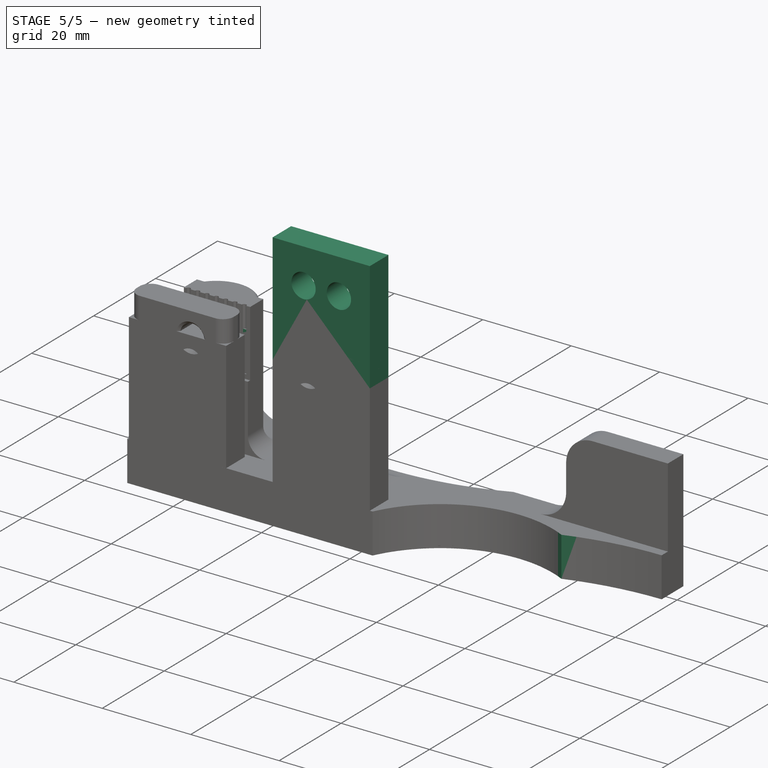
[diagram: stage 5 of 5 — iso view after this stage's code; geometry added in this stage tinted green]
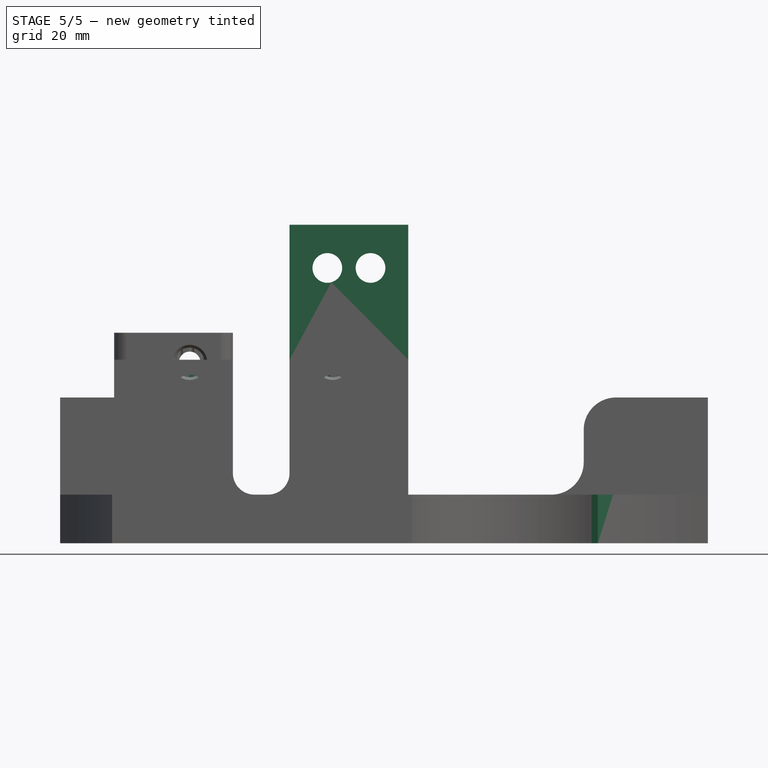
[diagram: stage 5 of 5 — front view after this stage's code; geometry added in this stage tinted green]
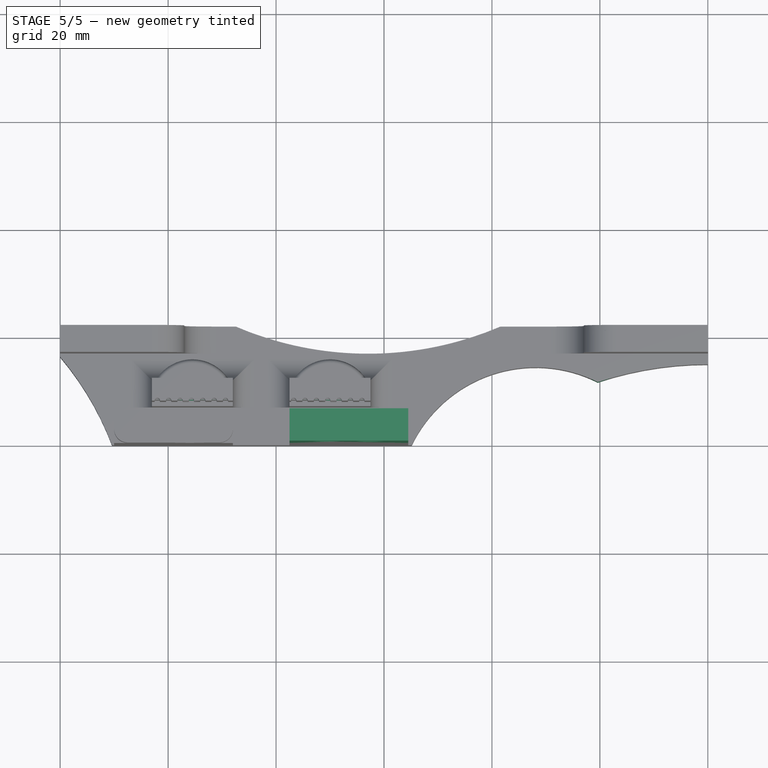
[diagram: stage 5 of 5 — top view after this stage's code; geometry added in this stage tinted green]
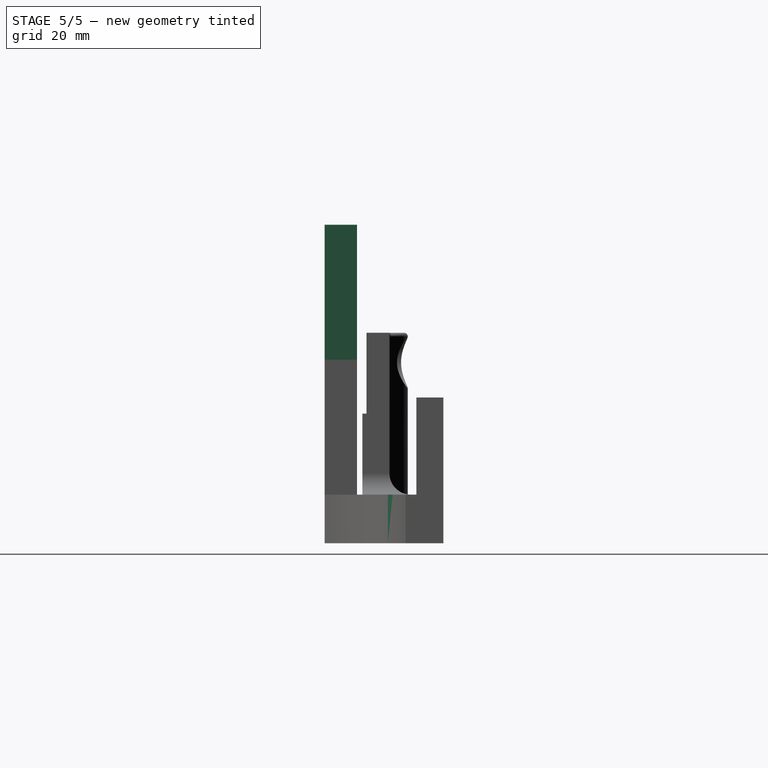
[diagram: stage 5 of 5 — right view after this stage's code; geometry added in this stage tinted green]
FEATURE [Sketcher::SketchObject] Sketch004
  ExternalGeometry = -> [Fillet001]
  Placement = pos=(0,0,34) rot=(0,0,1;0rad)
  Support = -> Fillet001 [Face41]
  sketch-geometry (4):
    g0: LineSegment StartX=42.5 StartY=0 StartZ=0 EndX=64.5 EndY=0 EndZ=0
    g1: LineSegment StartX=64.5 StartY=0 StartZ=0 EndX=64.5 EndY=6 EndZ=0
    g2: LineSegment StartX=64.5 StartY=6 StartZ=0 EndX=42.5 EndY=6 EndZ=0
    g3: LineSegment StartX=42.5 StartY=6 StartZ=0 EndX=42.5 EndY=0 EndZ=0
  constraints (10):
    c: Coincident(g0,g1)
    c: Coincident(g1,g2)
    c: Coincident(g2,g3)
    c: Coincident(g3,g0)
    c: Horizontal(g0)
    c: Horizontal(g2)
    c: Vertical(g1)
    c: Vertical(g3)
    c: Coincident(g0,g-4)
    c: Coincident(g1,g-3)
FEATURE [PartDesign::Pad] Pad002
  Length = 25
  Length2 = 100
  Sketch = -> Sketch004
  Type = 0
FEATURE [Sketcher::SketchObject] Sketch005
  ExternalGeometry = -> [Pad002]
  Placement = pos=(0,0,0) rot=(1,0,0;1.5708rad)
  Support = -> Pad002 [Face2]
  sketch-geometry (5):
    g0: Circle CenterX=49.5 CenterY=51 CenterZ=0 NormalX=0 NormalY=0 NormalZ=1 Radius=2.75
    g1: Circle CenterX=57.5 CenterY=51 CenterZ=0 NormalX=0 NormalY=0 NormalZ=1 Radius=2.75
    g2: LineSegment [constr] StartX=49.5 StartY=51 StartZ=0 EndX=57.5 EndY=51 EndZ=0
    g3: LineSegment [constr] StartX=49.5 StartY=51 StartZ=0 EndX=42.5 EndY=51 EndZ=0
    g4: LineSegment [constr] StartX=57.5 StartY=51 StartZ=0 EndX=64.5 EndY=51 EndZ=0
  constraints (14):
    c: Coincident(g2,g0)
    c: Coincident(g2,g1)
    c: Horizontal(g2)
    c: DistanceX(g2) = 8
    c: Coincident(g3,g0)
    c: PointOnObject(g3,g-3)
    c: Horizontal(g3)
    c: Coincident(g4,g1)
    c: PointOnObject(g4,g-4)
    c: Horizontal(g4)
    c: Equal(g4,g3)
    c: Equal(g0,g1)
    c: Radius(g1) = 2.75
    c: DistanceY(g-3,g3) = -8
FEATURE [PartDesign::Pocket] Pocket002
  Length = 5
  Sketch = -> Sketch005
  Type = 1
FEATURE [Sketcher::SketchObject] Sketch006
  ExternalGeometry = -> [Pocket002]
  Placement = pos=(0,0,0) rot=(1,0,0;1.5708rad)
  Support = -> Pocket002 [Face6]
  sketch-geometry (2):
    g0: Circle CenterX=24 CenterY=28.5 CenterZ=0 NormalX=0 NormalY=0 NormalZ=1 Radius=2
    g1: Circle CenterX=50.5 CenterY=28.5 CenterZ=0 NormalX=0 NormalY=0 NormalZ=1 Radius=2
  constraints (6):
    c: DistanceY(g-4,g0) = -5.5
    c: DistanceY(g1,g-6) = 5.5
    c: DistanceX(g-6,g1) = 8
    c: DistanceX(g0,g-4) = 8
    c: Equal(g0,g1)
    c: Radius(g0) = 2
FEATURE [PartDesign::Pocket] Pocket003
  Length = 5
  Sketch = -> Sketch006
  Type = 1
FEATURE [Sketcher::SketchObject] Sketch007
  ExternalGeometry = -> [Pocket003]
  Placement = pos=(0,0,0) rot=(1,0,0;1.5708rad)
  Support = -> Pocket003 [Face18]
  sketch-geometry (2):
    g0: Circle CenterX=24 CenterY=28.5 CenterZ=0 NormalX=0 NormalY=0 NormalZ=1 Radius=2.75
    g1: Circle CenterX=50.5 CenterY=28.5 CenterZ=0 NormalX=0 NormalY=0 NormalZ=1 Radius=2.75
  constraints (4):
    c: Coincident(g0,g-3)
    c: Coincident(g1,g-4)
    c: Equal(g0,g1)
    c: Radius(g1) = 2.75
FEATURE [PartDesign::Pocket] Pocket004
  Length = 6
  Sketch = -> Sketch007
  Type = 0
FEATURE [Sketcher::SketchObject] Sketch008
  ExternalGeometry = -> [Pocket004]
  Placement = pos=(0,0,34) rot=(0,0,1;0rad)
  Support = -> Pocket004 [Face41]
  sketch-geometry (4):
    g0: LineSegment StartX=17 StartY=7 StartZ=0 EndX=57.5 EndY=7 EndZ=0
    g1: LineSegment StartX=57.5 StartY=7 StartZ=0 EndX=57.5 EndY=8 EndZ=0
    g2: LineSegment StartX=57.5 StartY=8 StartZ=0 EndX=17 EndY=8 EndZ=0
    g3: LineSegment StartX=17 StartY=8 StartZ=0 EndX=17 EndY=7 EndZ=0
  constraints (11):
    c: Coincident(g0,g1)
    c: Coincident(g1,g2)
    c: Coincident(g2,g3)
    c: Coincident(g3,g0)
    c: Horizontal(g0)
    c: Horizontal(g2)
    c: Vertical(g1)
    c: Vertical(g3)
    c: Coincident(g0,g-3)
    c: PointOnObject(g1,g-4)
    c: DistanceY(g0,g1) = 1
FEATURE [PartDesign::Pocket] Pocket005
  Length = 15
  Sketch = -> Sketch008
  Type = 0
FEATURE [Sketcher::SketchObject] Sketch009
  ExternalGeometry = -> [Pocket005]
  Placement = pos=(0,22,0) rot=(0,0.707107,0.707107;3.14159rad)
  Support = -> Pocket005 [Face48]
  sketch-geometry (6):
    g0: Circle CenterX=-113 CenterY=7 CenterZ=0 NormalX=0 NormalY=0 NormalZ=1 Radius=1.75
    g1: Circle CenterX=-113 CenterY=16 CenterZ=0 NormalX=0 NormalY=0 NormalZ=1 Radius=1.75
    g2: Circle CenterX=-7 CenterY=7 CenterZ=0 NormalX=0 NormalY=0 NormalZ=1 Radius=1.75
    g3: Circle CenterX=-7 CenterY=16 CenterZ=0 NormalX=0 NormalY=0 NormalZ=1 Radius=1.75
    g4: LineSegment [constr] StartX=-7 StartY=7 StartZ=0 EndX=-7 EndY=16 EndZ=0
    g5: LineSegment [constr] StartX=-113 StartY=7 StartZ=0 EndX=-113 EndY=16 EndZ=0
  constraints (16):
    c: Coincident(g4,g2)
    c: Coincident(g4,g3)
    c: Vertical(g4)
    c: Coincident(g5,g0)
    c: Coincident(g5,g1)
    c: Vertical(g5)
    c: Equal(g5,g4)
    c: DistanceY(g5) = 9
    c: DistanceX(g-3,g0) = 7
    c: DistanceY(g0,g-3) = -7
    c: DistanceX(g2) = -7
    c: DistanceY(g2) = 7
    c: Equal(g3,g2)
    c: Equal(g2,g1)
    c: Equal(g1,g0)
    c: Radius(g3) = 1.75
FEATURE [PartDesign::Pocket] Pocket006
  Length = 6
  Sketch = -> Sketch009
  Type = 0
FEATURE [Sketcher::SketchObject] Sketch010
  Placement = pos=(0,0,0) rot=(1,0,0;3.14159rad)
  Support = -> Pocket006 [Face16]
  sketch-geometry (1):
    g0: Circle CenterX=120 CenterY=50 CenterZ=0 NormalX=0 NormalY=0 NormalZ=1 Radius=65
  constraints (3):
    c: DistanceX(g0) = 120
    c: DistanceY(g0) = 50
    c: Radius(g0) = 65
FEATURE [PartDesign::Pocket] Pocket007
  Length = 5
  Sketch = -> Sketch010
  Type = 1
FEATURE [Sketcher::SketchObject] Sketch011
  Placement = pos=(0,0,0) rot=(1,0,0;3.14159rad)
  Support = -> Pocket007 [Face15]
  sketch-geometry (1):
    g0: Circle CenterX=88.1219 CenterY=11.0816 CenterZ=0 NormalX=0 NormalY=0 NormalZ=1 Radius=25.5328
  constraints (3):
    c: DistanceX(g0) = 88.1219
    c: DistanceY(g0) = 11.0816
    c: Radius(g0) = 25.5328
FEATURE [PartDesign::Pocket] Pocket008
  Length = 5
  Sketch = -> Sketch011
  Type = 1
FEATURE [Sketcher::SketchObject] Sketch012
  Placement = pos=(0,0,0) rot=(1,0,0;3.14159rad)
  Support = -> Pocket008 [Face15]
  sketch-geometry (2):
    g0: Circle CenterX=57.0515 CenterY=-79.0515 CenterZ=0 NormalX=0 NormalY=0 NormalZ=1 Radius=62.0937
    g1: Circle CenterX=-43.1001 CenterY=19.9254 CenterZ=0 NormalX=0 NormalY=0 NormalZ=1 Radius=56.369
FEATURE [PartDesign::Pocket] Pocket009
  Length = 5
  Sketch = -> Sketch012
  Type = 1
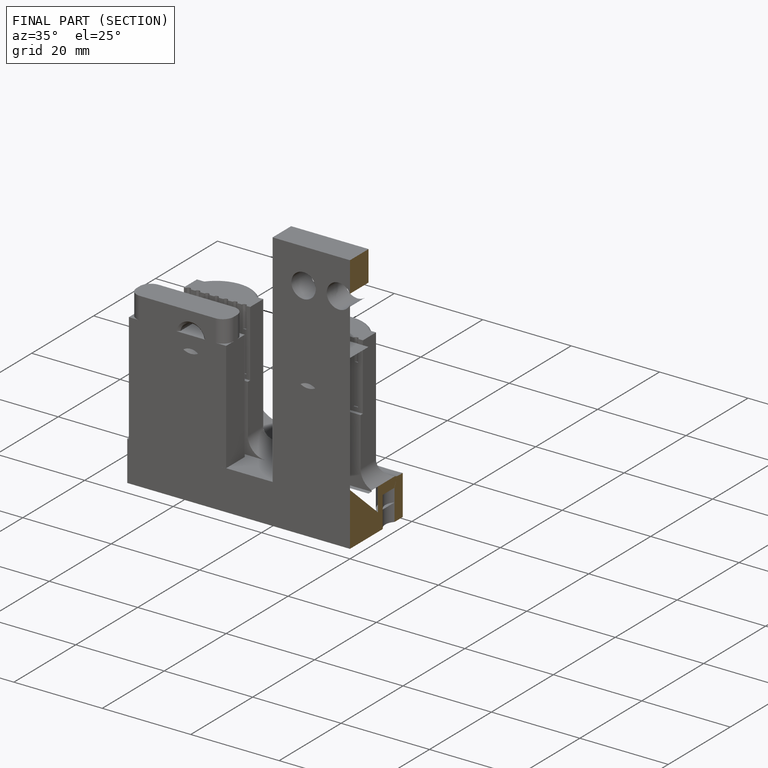
[diagram: finished part — half-section view (interior)]
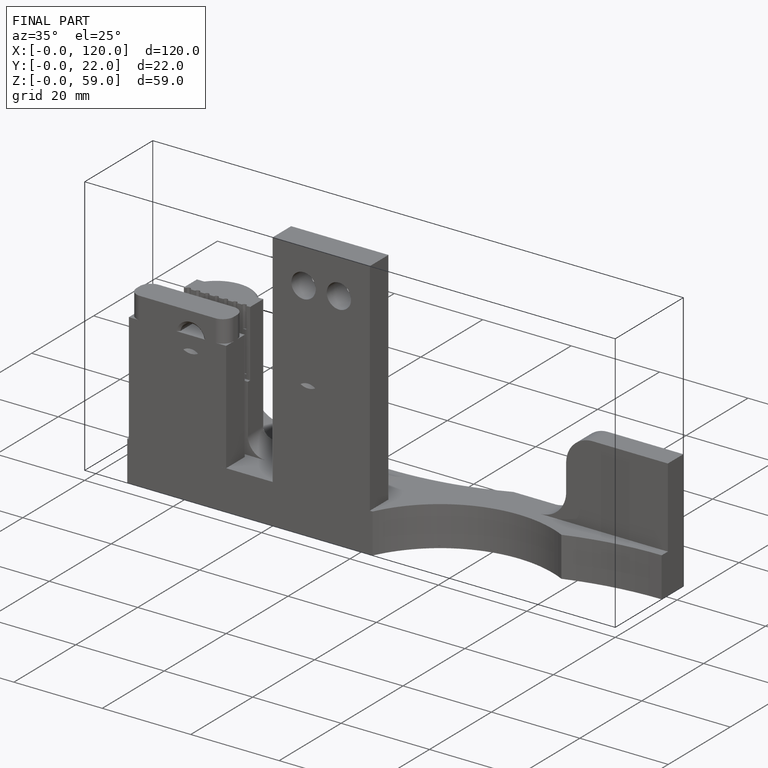
[diagram: finished part — iso view with bounding-box wireframe]
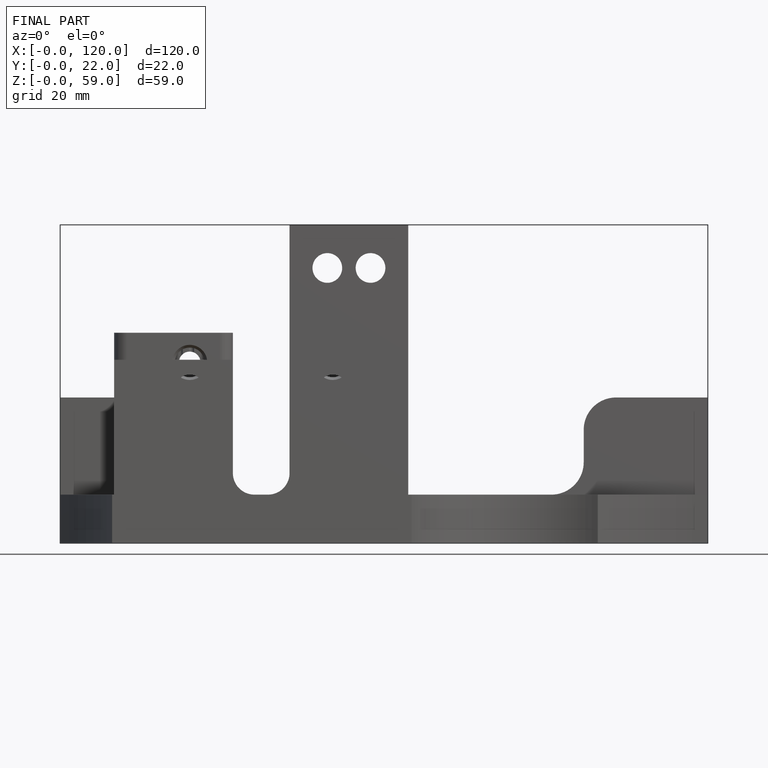
[diagram: finished part — front view with bounding-box wireframe]
